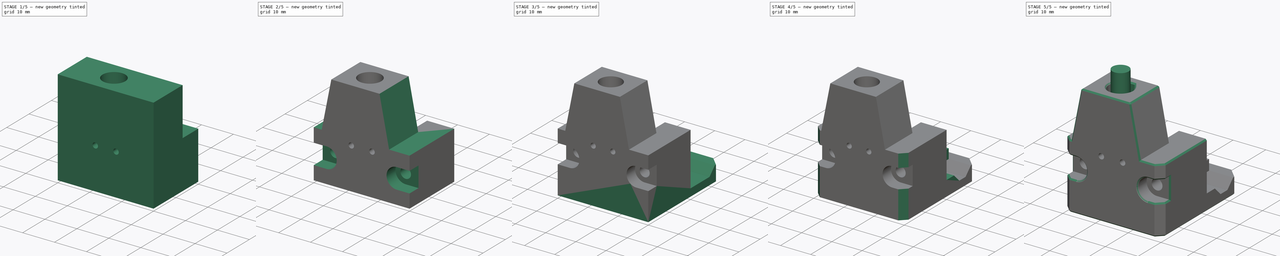
[diagram: build sequence overview — one tinted view per stage of 5, left to right]
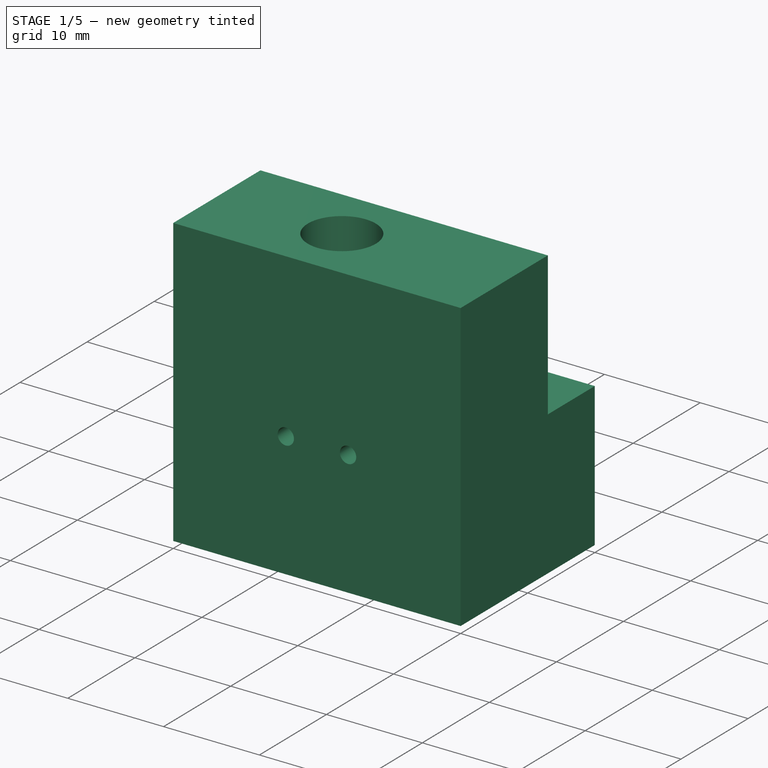
[diagram: stage 1 of 5 — iso view after this stage's code; geometry added in this stage tinted green]
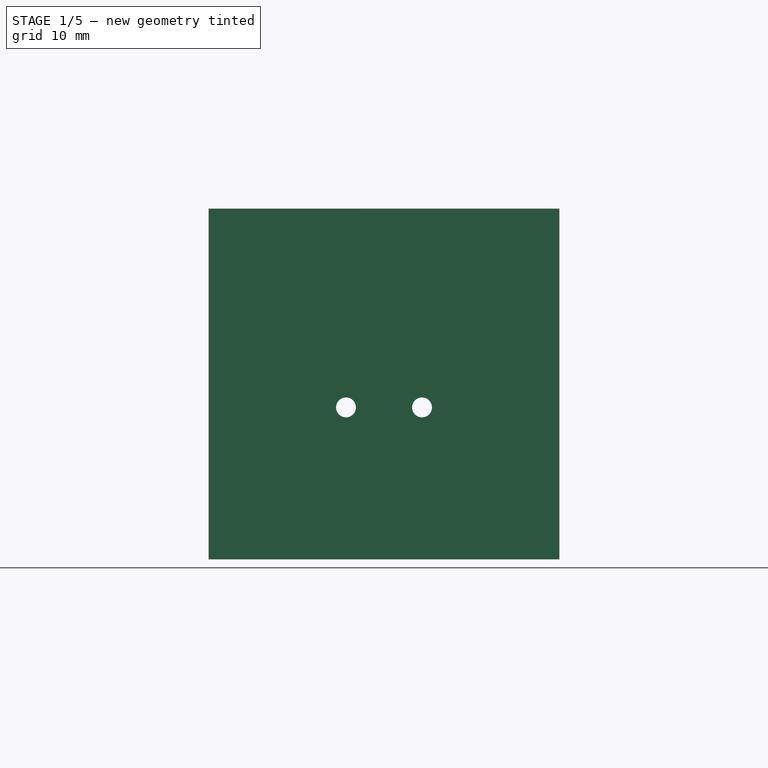
[diagram: stage 1 of 5 — front view after this stage's code; geometry added in this stage tinted green]
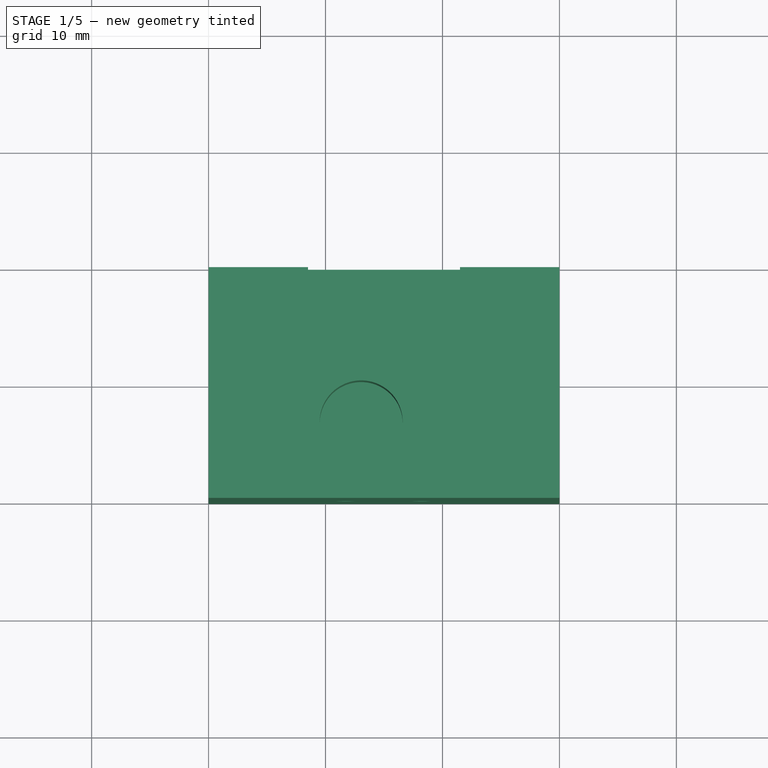
[diagram: stage 1 of 5 — top view after this stage's code; geometry added in this stage tinted green]
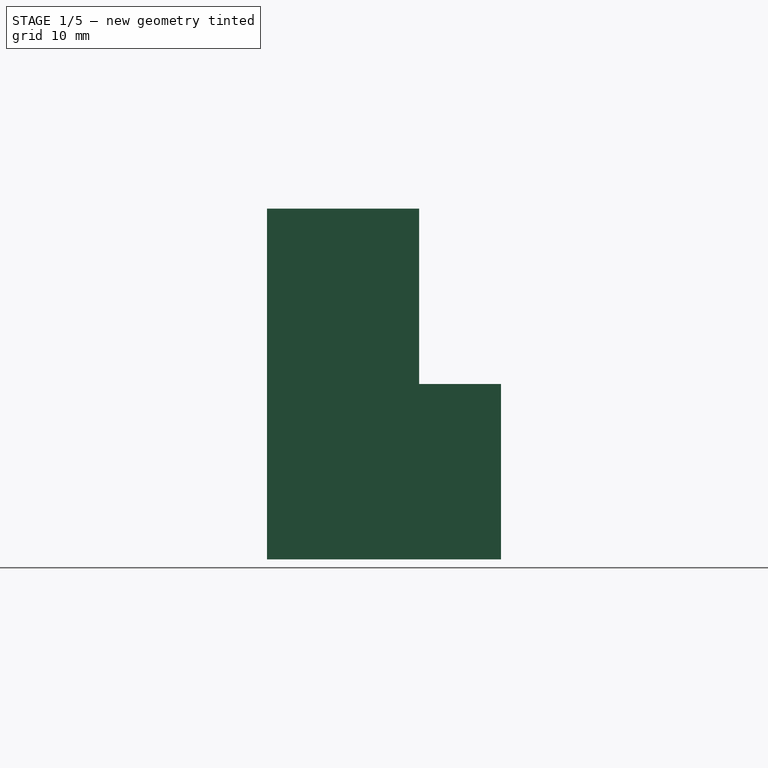
[diagram: stage 1 of 5 — right view after this stage's code; geometry added in this stage tinted green]
FCSTD DOCUMENT  (FreeCAD 0.19R24366 (Git))
Label: z-endstop
License: All rights reserved
LicenseURL: http://en.wikipedia.org/wiki/All_rights_reserved
objects: Sketcher::SketchObject×16, PartDesign::Pocket×11, PartDesign::Chamfer×6, PartDesign::Pad×5, Part::Cylinder×1, PartDesign::Body×1
note: 62 computed .brp shape members not serialized (recipe doc carries the construction recipe); baked Part::Feature solids carry a one-line shape summary decoded from their .brp

FEATURE [Sketcher::SketchObject] Sketch
  FullyConstrained = true
  MapMode = 5
  Support = -> [XY_Plane]
  sketch-geometry (4):
    g0: LineSegment StartX=0 StartY=0 StartZ=0 EndX=30 EndY=0 EndZ=0
    g1: LineSegment StartX=30 StartY=0 StartZ=0 EndX=30 EndY=-20 EndZ=0
    g2: LineSegment StartX=30 StartY=-20 StartZ=0 EndX=0 EndY=-20 EndZ=0
    g3: LineSegment StartX=0 StartY=-20 StartZ=0 EndX=0 EndY=0 EndZ=0
  constraints (11):
    c: Coincident(g0,g1)
    c: Coincident(g1,g2)
    c: Coincident(g2,g3)
    c: Coincident(g3,g0)
    c: Horizontal(g0)
    c: Horizontal(g2)
    c: Vertical(g1)
    c: Vertical(g3)
    c: Coincident(g0,g-1)
    c: DistanceX(g2,g2) = 30
    c: DistanceY(g3,g3) = 20
FEATURE [PartDesign::Pad] Pad
  Direction = (1,1,1)
  Length = 15
  Length2 = 100
  Profile = -> Sketch
  Type = 0
FEATURE [Sketcher::SketchObject] Sketch001
  ExternalGeometry = -> [Pad]
  FullyConstrained = true
  MapMode = 5
  Placement = pos=(0,0,15) rot=(0,0,1;0rad)
  Support = -> [Pad]
  sketch-geometry (4):
    g0: LineSegment StartX=0 StartY=-20 StartZ=0 EndX=30 EndY=-20 EndZ=0
    g1: LineSegment StartX=30 StartY=-20 StartZ=0 EndX=30 EndY=-7 EndZ=0
    g2: LineSegment StartX=30 StartY=-7 StartZ=0 EndX=0 EndY=-7 EndZ=0
    g3: LineSegment StartX=0 StartY=-7 StartZ=0 EndX=0 EndY=-20 EndZ=0
  constraints (11):
    c: Coincident(g0,g1)
    c: Coincident(g1,g2)
    c: Coincident(g2,g3)
    c: Coincident(g3,g0)
    c: Horizontal(g0)
    c: Horizontal(g2)
    c: Vertical(g1)
    c: Vertical(g3)
    c: Coincident(g0,g-3)
    c: PointOnObject(g1,g-4)
    c: DistanceY(g1,g-4) = 7
FEATURE [PartDesign::Pad] Pad001
  BaseFeature = -> Pad
  Direction = (1,1,1)
  Length = 15
  Length2 = 100
  Profile = -> Sketch001
  Refine = true
  Type = 0
FEATURE [Sketcher::SketchObject] Sketch002
  ExternalGeometry = -> [Pad001]
  FullyConstrained = true
  MapMode = 5
  Placement = pos=(0,0,0) rot=(0,0.707107,0.707107;3.14159rad)
  Support = -> [Pad001]
  sketch-geometry (4):
    g0: LineSegment StartX=-21.5 StartY=19 StartZ=0 EndX=-8.5 EndY=19 EndZ=0
    g1: LineSegment StartX=-8.5 StartY=19 StartZ=0 EndX=-8.5 EndY=2 EndZ=0
    g2: LineSegment StartX=-8.5 StartY=2 StartZ=0 EndX=-21.5 EndY=2 EndZ=0
    g3: LineSegment StartX=-21.5 StartY=2 StartZ=0 EndX=-21.5 EndY=19 EndZ=0
  constraints (12):
    c: Coincident(g0,g1)
    c: Coincident(g1,g2)
    c: Coincident(g2,g3)
    c: Coincident(g3,g0)
    c: Horizontal(g0)
    c: Horizontal(g2)
    c: Vertical(g1)
    c: Vertical(g3)
    c: DistanceY(g-1,g1) = 2
    c: DistanceX(g-3,g0) = 8.5
    c: DistanceX(g0,g-3) = 8.5
    c: DistanceY(g-3,g0) = 4
FEATURE [PartDesign::Pocket] Pocket
  BaseFeature = -> Pad001
  Length = 16.5
  Length2 = 100
  Profile = -> Sketch002
  Type = 0
FEATURE [Sketcher::SketchObject] Sketch003
  ExternalGeometry = -> [Pocket]
  FullyConstrained = true
  MapMode = 5
  Placement = pos=(0,-16.5,3.7e-15) rot=(0,0.707107,0.707107;3.14159rad)
  Support = -> [Pocket]
  sketch-geometry (2):
    g0: Circle CenterX=-18.25 CenterY=13 CenterZ=0 NormalX=0 NormalY=0 NormalZ=1 AngleXU=0 Radius=0.85
    g1: Circle CenterX=-11.75 CenterY=13 CenterZ=0 NormalX=0 NormalY=0 NormalZ=1 AngleXU=0 Radius=0.85
  constraints (6):
    c: DistanceX(g0,g1) = 6.5
    c: DistanceX(g-4,g0) = 3.25
    c: Horizontal(g0,g1)
    c: Equal(g0,g1)
    c: Radius(g1) = 0.85
    c: DistanceY(g0,g-5) = 6
FEATURE [PartDesign::Pocket] Pocket001
  BaseFeature = -> Pocket
  Length = 4
  Length2 = 100
  Profile = -> Sketch003
  Type = 0
FEATURE [Sketcher::SketchObject] Sketch004
  ExternalGeometry = -> [Pocket001]
  FullyConstrained = true
  MapMode = 5
  Placement = pos=(0,0,30) rot=(0,0,1;0rad)
  Support = -> [Pocket001]
  sketch-geometry (2):
    g0: Circle CenterX=13.05 CenterY=-13.5 CenterZ=0 NormalX=0 NormalY=0 NormalZ=1 AngleXU=0 Radius=3.55
    g1: GeomPoint X=18.25 Y=-16.5 Z=0
  constraints (5):
    c: DistanceY(g-3,g0) = 3
    c: PointOnObject(g1,g-3)
    c: DistanceX(g1,g-3) = 3.25
    c: DistanceX(g0,g1) = 5.2
    c: Radius(g0) = 3.55
FEATURE [PartDesign::Pocket] Pocket002
  BaseFeature = -> Pocket001
  Length = 8.5
  Length2 = 100
  Profile = -> Sketch004
  Type = 0
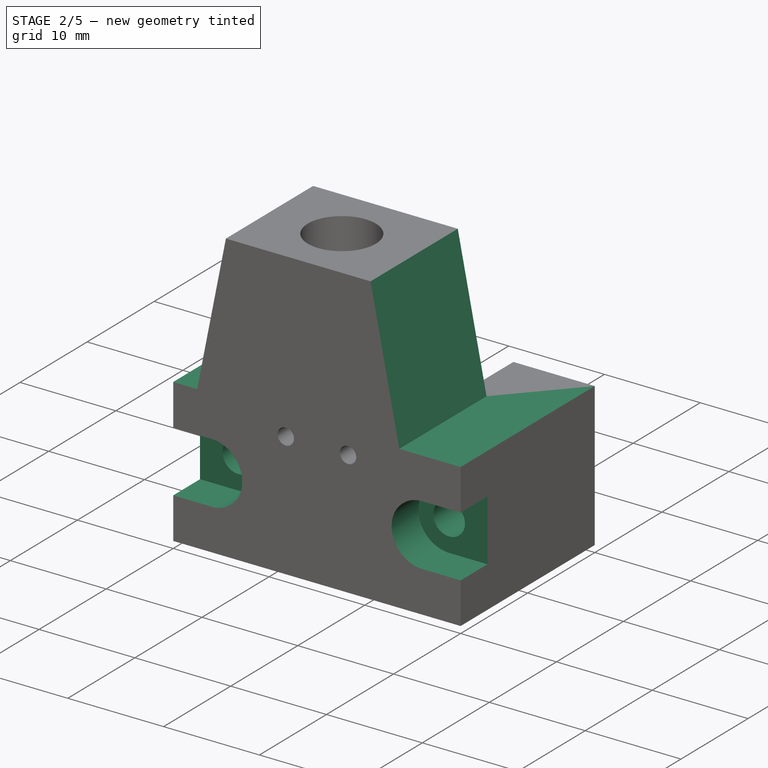
[diagram: stage 2 of 5 — iso view after this stage's code; geometry added in this stage tinted green]
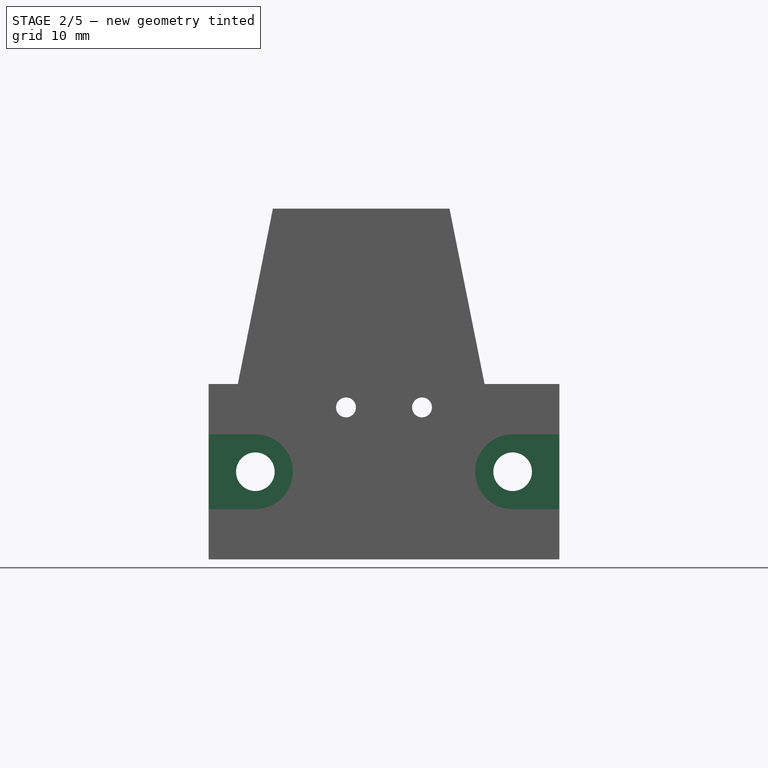
[diagram: stage 2 of 5 — front view after this stage's code; geometry added in this stage tinted green]
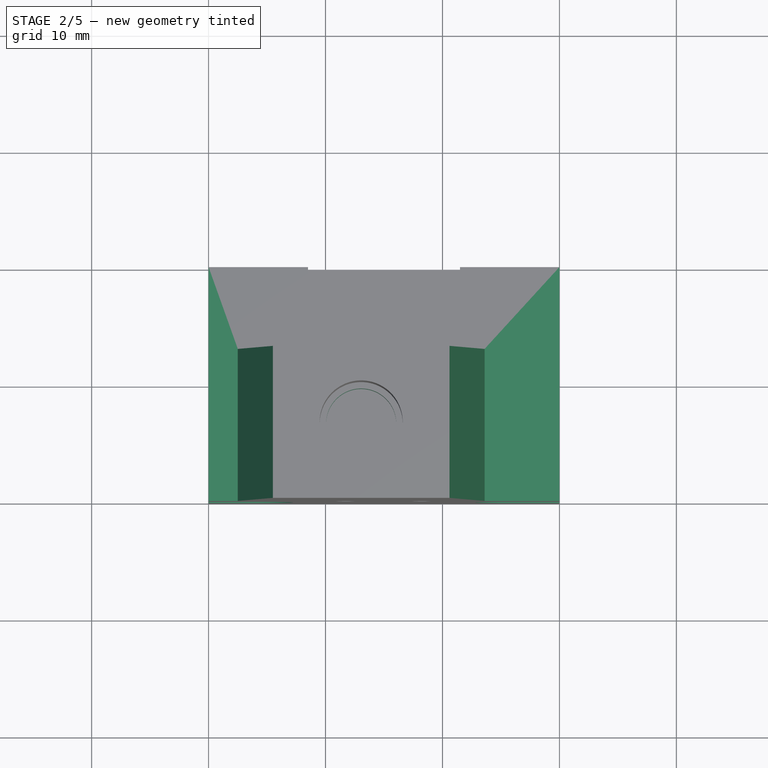
[diagram: stage 2 of 5 — top view after this stage's code; geometry added in this stage tinted green]
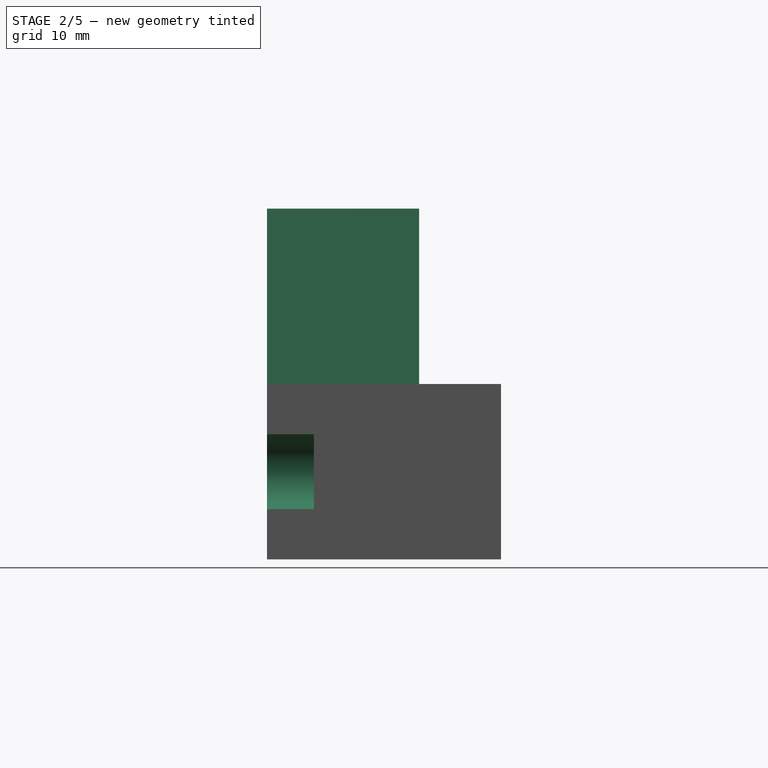
[diagram: stage 2 of 5 — right view after this stage's code; geometry added in this stage tinted green]
FEATURE [Sketcher::SketchObject] Sketch005
  ExternalGeometry = -> [Pocket002]
  FullyConstrained = true
  MapMode = 5
  Placement = pos=(0,0,21.5) rot=(0,0,1;0rad)
  Support = -> [Pocket002]
  sketch-geometry (1):
    g0: Circle CenterX=13.05 CenterY=-13.5 CenterZ=0 NormalX=0 NormalY=0 NormalZ=1 AngleXU=0 Radius=3
  constraints (2):
    c: Coincident(g0,g-3)
    c: Radius(g0) = 3
FEATURE [PartDesign::Pocket] Pocket003
  BaseFeature = -> Pocket002
  Length = 0
  Length2 = 100
  Profile = -> Sketch005
  Type = 3
  UpToFace = -> Pocket002 [Face13]
FEATURE [Sketcher::SketchObject] Sketch006
  ExternalGeometry = -> [Pocket003]
  FullyConstrained = true
  MapMode = 5
  Placement = pos=(0,0,0) rot=(0,0.707107,0.707107;3.14159rad)
  Support = -> [Pocket003]
  sketch-geometry (2):
    g0: Circle CenterX=-26 CenterY=7.5 CenterZ=0 NormalX=0 NormalY=0 NormalZ=1 AngleXU=0 Radius=1.65
    g1: Circle CenterX=-4 CenterY=7.5 CenterZ=0 NormalX=0 NormalY=0 NormalZ=1 AngleXU=0 Radius=1.65
  constraints (6):
    c: Horizontal(g1,g0)
    c: Equal(g0,g1)
    c: DistanceY(g-3,g0) = 7.5
    c: DistanceX(g-3,g0) = 4
    c: DistanceX(g1,g-1) = 4
    c: Radius(g1) = 1.65
FEATURE [PartDesign::Pocket] Pocket004
  BaseFeature = -> Pocket003
  Length = 5
  Length2 = 100
  Profile = -> Sketch006
  Type = 1
FEATURE [Sketcher::SketchObject] Sketch007
  ExternalGeometry = -> [Pocket004]
  FullyConstrained = true
  MapMode = 5
  Placement = pos=(0,-20,0) rot=(1,0,0;1.5708rad)
  Support = -> [Pocket004]
  sketch-geometry (8):
    g0: ArcOfCircle CenterX=4 CenterY=7.5 CenterZ=0 NormalX=0 NormalY=0 NormalZ=1 AngleXU=0 Radius=3.2 StartAngle=4.71239 EndAngle=7.85398
    g1: ArcOfCircle CenterX=26 CenterY=7.5 CenterZ=0 NormalX=0 NormalY=0 NormalZ=1 AngleXU=0 Radius=3.2 StartAngle=1.5708 EndAngle=4.71239
    g2: LineSegment StartX=0 StartY=10.7 StartZ=0 EndX=4 EndY=10.7 EndZ=0
    g3: LineSegment StartX=0 StartY=4.3 StartZ=0 EndX=4 EndY=4.3 EndZ=0
    g4: LineSegment StartX=0 StartY=4.3 StartZ=0 EndX=0 EndY=10.7 EndZ=0
    g5: LineSegment StartX=30 StartY=10.7 StartZ=0 EndX=26 EndY=10.7 EndZ=0
    g6: LineSegment StartX=30 StartY=4.3 StartZ=0 EndX=26 EndY=4.3 EndZ=0
    g7: LineSegment StartX=30 StartY=4.3 StartZ=0 EndX=30 EndY=10.7 EndZ=0
  constraints (24):
    c: Coincident(g0,g-5)
    c: Coincident(g1,g-4)
    c: Vertical(g0,g0)
    c: Vertical(g0,g0)
    c: Vertical(g1,g1)
    c: Vertical(g1,g1)
    c: Equal(g0,g1)
    c: Radius(g0) = 3.2
    c: PointOnObject(g2,g-2)
    c: Coincident(g2,g0)
    c: PointOnObject(g3,g-2)
    c: Coincident(g3,g0)
    c: Coincident(g4,g3)
    c: Coincident(g4,g2)
    c: PointOnObject(g5,g-3)
    c: Coincident(g5,g1)
    c: PointOnObject(g6,g-3)
    c: Coincident(g6,g1)
    c: Coincident(g7,g6)
    c: Coincident(g7,g5)
    c: Horizontal(g5)
    c: Horizontal(g6)
    c: Horizontal(g2)
    c: Horizontal(g3)
FEATURE [PartDesign::Pocket] Pocket005
  BaseFeature = -> Pocket004
  Length = 4
  Length2 = 100
  Profile = -> Sketch007
  Type = 0
FEATURE [Sketcher::SketchObject] Sketch008
  ExternalGeometry = -> [Pocket005]
  FullyConstrained = true
  MapMode = 5
  Placement = pos=(0,-20,0) rot=(1,0,0;1.5708rad)
  Support = -> [Pocket005]
  sketch-geometry (8):
    g0: LineSegment StartX=5.5 StartY=30 StartZ=0 EndX=2.5 EndY=15 EndZ=0
    g1: LineSegment StartX=2.5 StartY=15 StartZ=0 EndX=0 EndY=15 EndZ=0
    g2: LineSegment StartX=0 StartY=15 StartZ=0 EndX=0 EndY=30 EndZ=0
    g3: LineSegment StartX=0 StartY=30 StartZ=0 EndX=5.5 EndY=30 EndZ=0
    g4: LineSegment StartX=20.6 StartY=30 StartZ=0 EndX=23.6 EndY=15 EndZ=0
    g5: LineSegment StartX=23.6 StartY=15 StartZ=0 EndX=30 EndY=15 EndZ=0
    g6: LineSegment StartX=30 StartY=15 StartZ=0 EndX=30 EndY=30 EndZ=0
    g7: LineSegment StartX=30 StartY=30 StartZ=0 EndX=20.6 EndY=30 EndZ=0
  constraints (22):
    c: PointOnObject(g0,g-6)
    c: Coincident(g0,g1)
    c: PointOnObject(g1,g-2)
    c: Horizontal(g1)
    c: Coincident(g1,g2)
    c: Coincident(g2,g-6)
    c: Coincident(g2,g3)
    c: Coincident(g3,g0)
    c: PointOnObject(g4,g-6)
    c: Coincident(g4,g5)
    c: PointOnObject(g5,g-5)
    c: Coincident(g5,g6)
    c: Coincident(g6,g-6)
    c: Coincident(g6,g7)
    c: Coincident(g7,g4)
    c: Horizontal(g5)
    c: DistanceX(g0,g-3) = 4
    c: DistanceX(g-3,g4) = 4
    c: DistanceX(g0,g0) = 3
    c: DistanceX(g4,g4) = 3
    c: Horizontal(g0,g4)
    c: DistanceY(g-1,g1) = 15
FEATURE [PartDesign::Pocket] Pocket006
  BaseFeature = -> Pocket005
  Length = 5
  Length2 = 100
  Profile = -> Sketch008
  Refine = true
  Type = 1
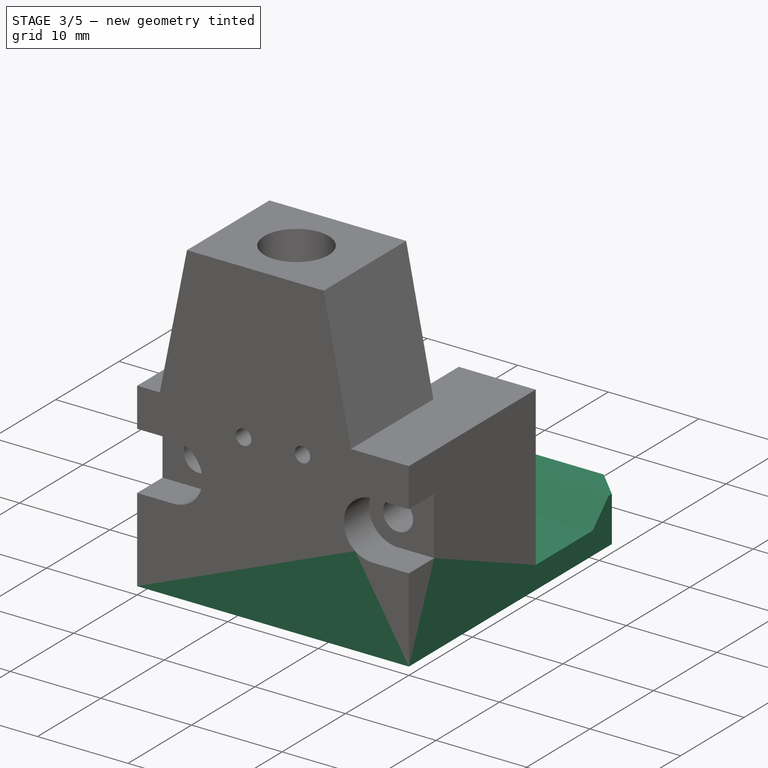
[diagram: stage 3 of 5 — iso view after this stage's code; geometry added in this stage tinted green]
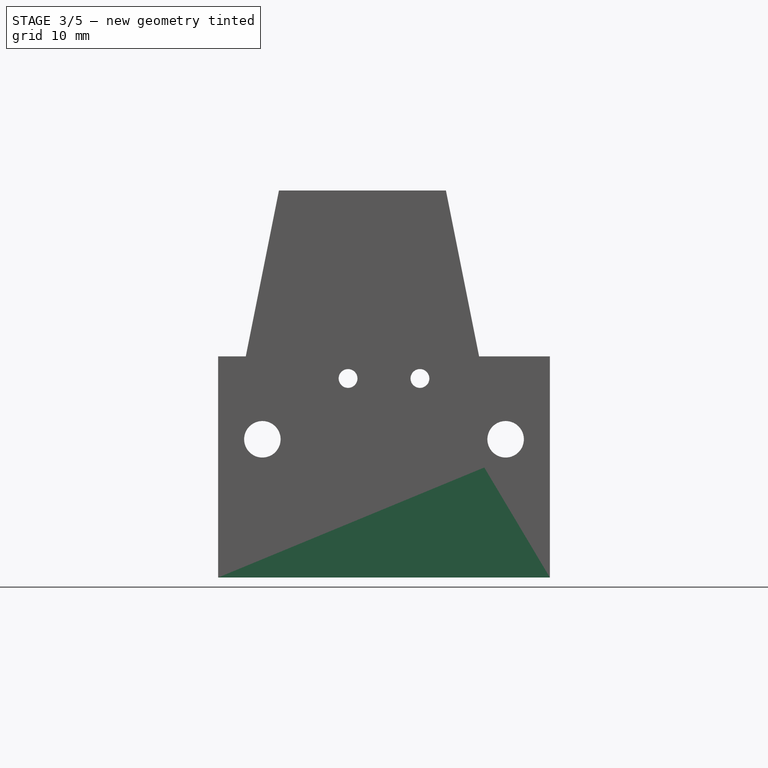
[diagram: stage 3 of 5 — front view after this stage's code; geometry added in this stage tinted green]
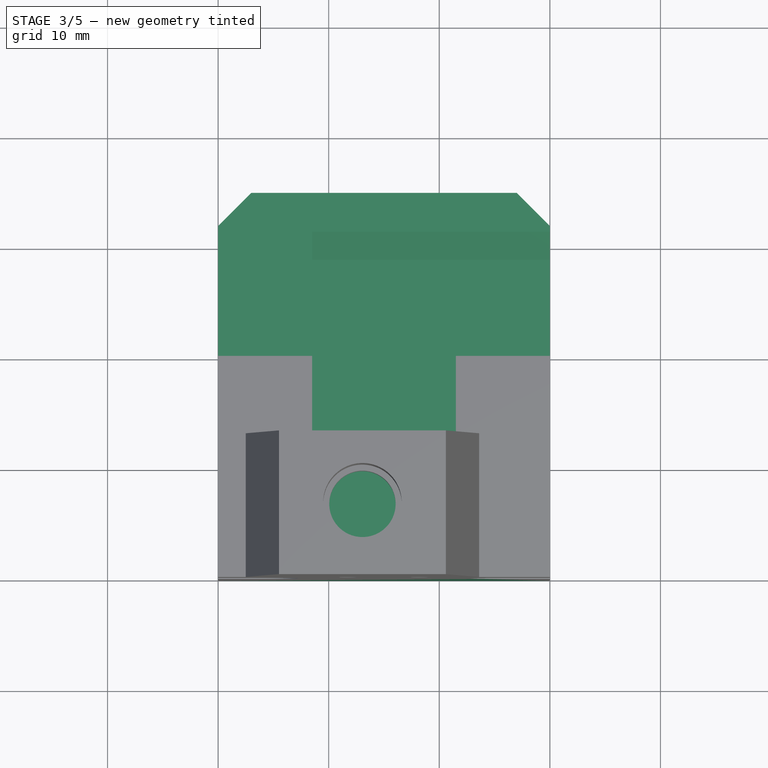
[diagram: stage 3 of 5 — top view after this stage's code; geometry added in this stage tinted green]
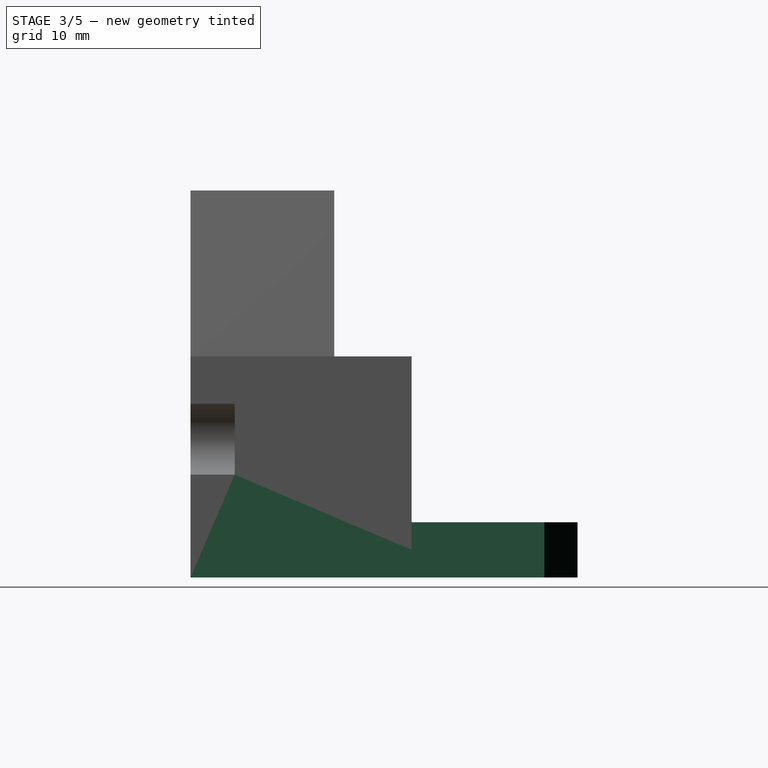
[diagram: stage 3 of 5 — right view after this stage's code; geometry added in this stage tinted green]
FEATURE [Sketcher::SketchObject] Sketch009
  ExternalGeometry = -> [Pocket006]
  FullyConstrained = true
  MapMode = 5
  Placement = pos=(0,-20,0) rot=(1,0,0;1.5708rad)
  Support = -> [Pocket006]
  sketch-geometry (4):
    g0: LineSegment StartX=0 StartY=0 StartZ=0 EndX=30 EndY=0 EndZ=0
    g1: LineSegment StartX=30 StartY=0 StartZ=0 EndX=30 EndY=-5 EndZ=0
    g2: LineSegment StartX=30 StartY=-5 StartZ=0 EndX=0 EndY=-5 EndZ=0
    g3: LineSegment StartX=0 StartY=-5 StartZ=0 EndX=0 EndY=0 EndZ=0
  constraints (11):
    c: Coincident(g0,g1)
    c: Coincident(g1,g2)
    c: Coincident(g2,g3)
    c: Coincident(g3,g0)
    c: Horizontal(g0)
    c: Horizontal(g2)
    c: Vertical(g1)
    c: Vertical(g3)
    c: Coincident(g0,g-1)
    c: Vertical(g0,g-3)
    c: DistanceY(g1,g1) = 5
FEATURE [PartDesign::Pad] Pad002
  BaseFeature = -> Pocket006
  Direction = (1,1,1)
  Length = 35
  Length2 = 100
  Profile = -> Sketch009
  Reversed = true
  Type = 0
FEATURE [Sketcher::SketchObject] Sketch010
  ExternalGeometry = -> [Pad002]
  FullyConstrained = true
  MapMode = 5
  Placement = pos=(0,-16.5,3.7e-15) rot=(0,0.707107,0.707107;3.14159rad)
  Support = -> [Pad002]
  sketch-geometry (4):
    g0: LineSegment StartX=-21.5 StartY=2 StartZ=0 EndX=-8.5 EndY=2 EndZ=0
    g1: LineSegment StartX=-8.5 StartY=2 StartZ=0 EndX=-8.5 EndY=-2.5 EndZ=0
    g2: LineSegment StartX=-8.5 StartY=-2.5 StartZ=0 EndX=-21.5 EndY=-2.5 EndZ=0
    g3: LineSegment StartX=-21.5 StartY=-2.5 StartZ=0 EndX=-21.5 EndY=2 EndZ=0
  constraints (11):
    c: Coincident(g0,g1)
    c: Coincident(g1,g2)
    c: Coincident(g2,g3)
    c: Coincident(g3,g0)
    c: Horizontal(g0)
    c: Horizontal(g2)
    c: Vertical(g1)
    c: Vertical(g3)
    c: Coincident(g0,g-3)
    c: Vertical(g1,g-3)
    c: DistanceY(g2,g-1) = 2.5
FEATURE [PartDesign::Pocket] Pocket007
  BaseFeature = -> Pad002
  Length = 25.5
  Length2 = 100
  Profile = -> Sketch010
  Reversed = true
  Type = 0
FEATURE [Sketcher::SketchObject] Sketch011
  ExternalGeometry = -> [Pocket007]
  FullyConstrained = true
  MapMode = 5
  Placement = pos=(21.5,0,0) rot=(0.57735,-0.57735,-0.57735;2.0944rad)
  Support = -> [Pocket007]
  sketch-geometry (4):
    g0: LineSegment StartX=-9 StartY=-2.5 StartZ=0 EndX=0 EndY=-2.5 EndZ=0
    g1: LineSegment StartX=0 StartY=-2.5 StartZ=0 EndX=0 EndY=0 EndZ=0
    g2: LineSegment StartX=0 StartY=0 StartZ=0 EndX=-9 EndY=0 EndZ=0
    g3: LineSegment StartX=-9 StartY=0 StartZ=0 EndX=-9 EndY=-2.5 EndZ=0
  constraints (10):
    c: Coincident(g0,g1)
    c: Coincident(g1,g2)
    c: Coincident(g2,g3)
    c: Coincident(g3,g0)
    c: Horizontal(g0)
    c: Horizontal(g2)
    c: Vertical(g1)
    c: Vertical(g3)
    c: Coincident(g0,g-3)
    c: Coincident(g1,g-1)
FEATURE [PartDesign::Pocket] Pocket008
  BaseFeature = -> Pocket007
  Length = 5
  Length2 = 100
  Profile = -> Sketch011
  Refine = true
  Type = 1
FEATURE [PartDesign::Chamfer] Chamfer
  Angle = 45
  Base = -> Pocket008 [Edge15]
  BaseFeature = -> Pocket008
  ChamferType = 0
  FlipDirection = false
  Size = 2.49
  Size2 = 1
  SupportTransform = false
FEATURE [PartDesign::Chamfer] Chamfer001
  Angle = 45
  Base = -> Chamfer [Edge9,Edge23]
  BaseFeature = -> Chamfer
  ChamferType = 0
  FlipDirection = false
  Size = 3
  Size2 = 1
  SupportTransform = false
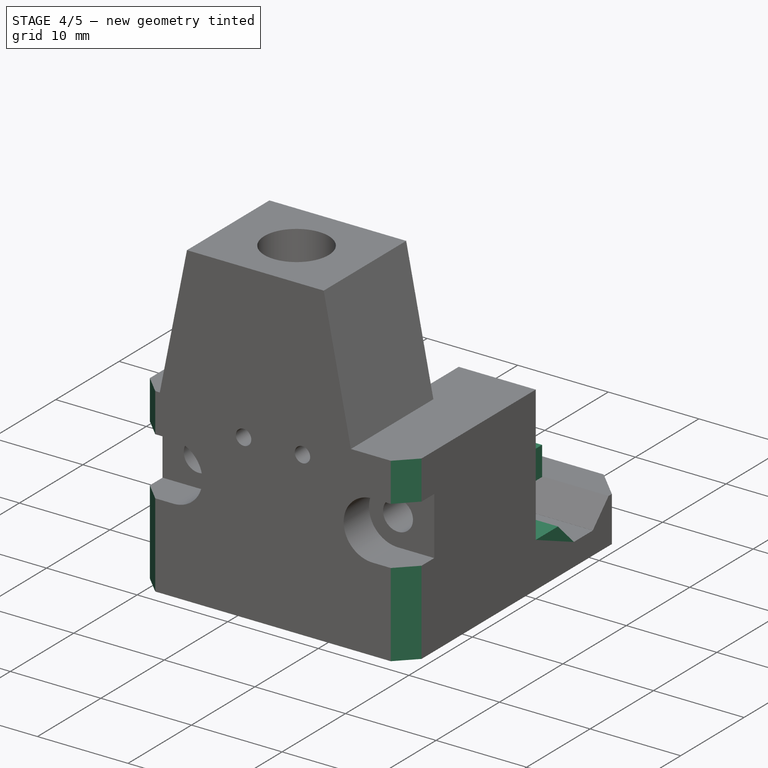
[diagram: stage 4 of 5 — iso view after this stage's code; geometry added in this stage tinted green]
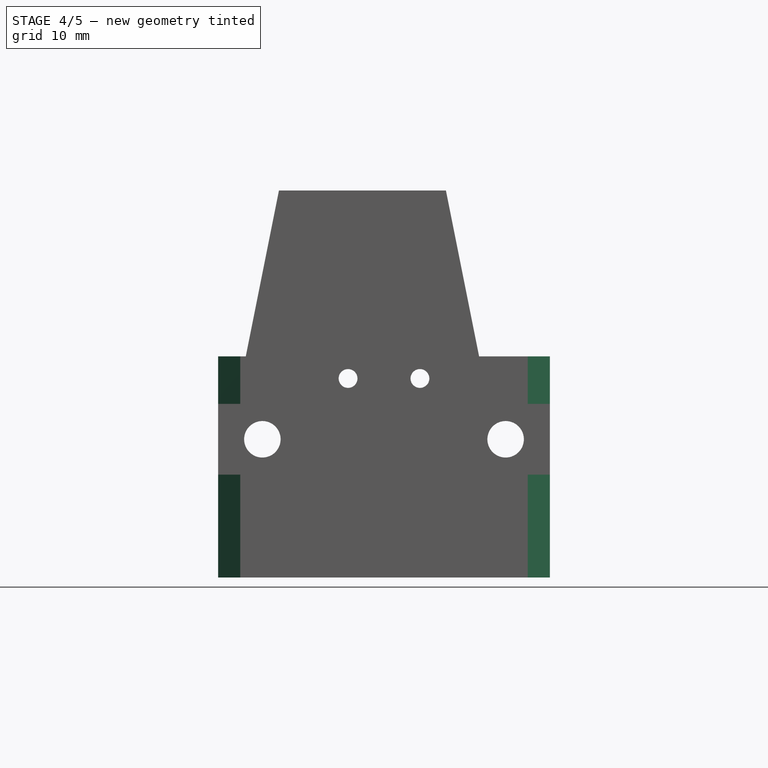
[diagram: stage 4 of 5 — front view after this stage's code; geometry added in this stage tinted green]
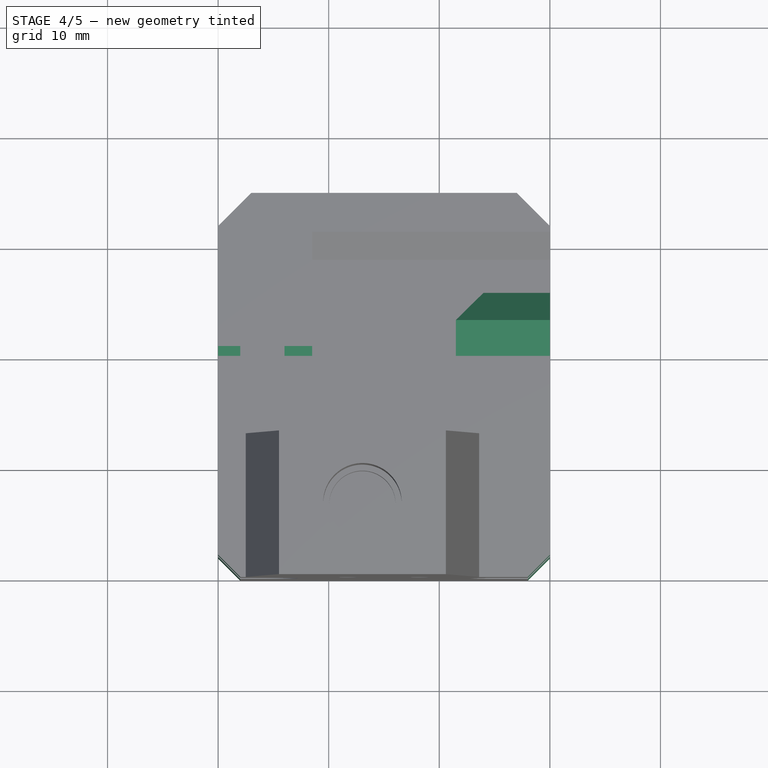
[diagram: stage 4 of 5 — top view after this stage's code; geometry added in this stage tinted green]
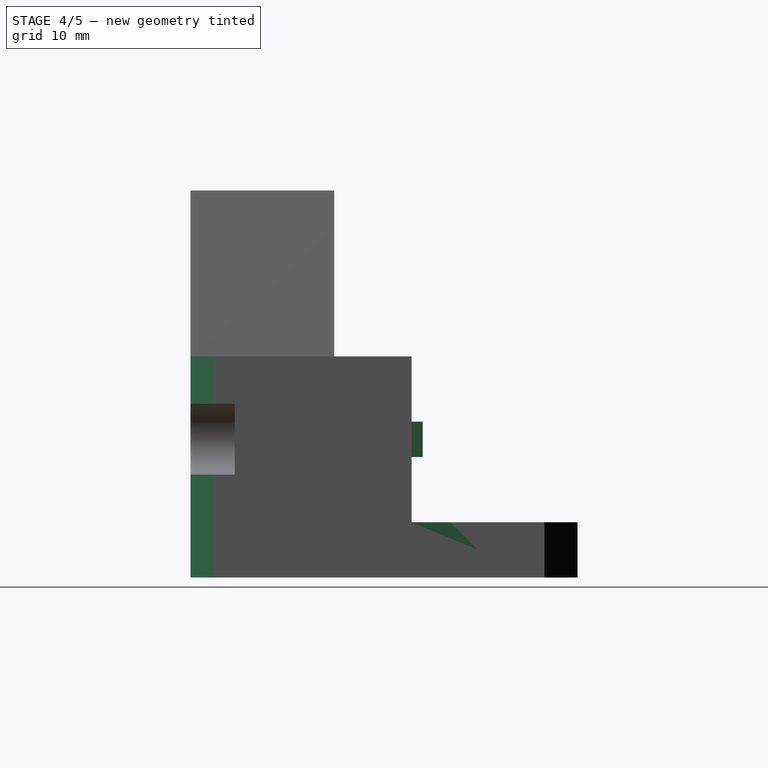
[diagram: stage 4 of 5 — right view after this stage's code; geometry added in this stage tinted green]
FEATURE [Sketcher::SketchObject] Sketch012
  ExternalGeometry = -> [Chamfer001]
  FullyConstrained = true
  MapMode = 5
  Placement = pos=(0,3e-15,0) rot=(0,0.707107,0.707107;3.14159rad)
  Support = -> [Chamfer001]
  sketch-geometry (4):
    g0: LineSegment StartX=-30 StartY=-2.5 StartZ=0 EndX=-21.5 EndY=-2.5 EndZ=0
    g1: LineSegment StartX=-21.5 StartY=-2.5 StartZ=0 EndX=-21.5 EndY=0 EndZ=0
    g2: LineSegment StartX=-21.5 StartY=0 StartZ=0 EndX=-30 EndY=0 EndZ=0
    g3: LineSegment StartX=-30 StartY=0 StartZ=0 EndX=-30 EndY=-2.5 EndZ=0
  constraints (11):
    c: Coincident(g0,g1)
    c: Coincident(g1,g2)
    c: Coincident(g2,g3)
    c: Coincident(g3,g0)
    c: Horizontal(g0)
    c: Horizontal(g2)
    c: Vertical(g1)
    c: Vertical(g3)
    c: Coincident(g0,g-3)
    c: PointOnObject(g1,g-1)
    c: Vertical(g1,g-3)
FEATURE [PartDesign::Pad] Pad003
  BaseFeature = -> Chamfer001
  Direction = (1,1,1)
  Length = 6
  Length2 = 100
  Profile = -> Sketch012
  Type = 0
FEATURE [PartDesign::Chamfer] Chamfer002
  Angle = 45
  Base = -> Pad003 [Edge111,Edge110]
  BaseFeature = -> Pad003
  ChamferType = 0
  FlipDirection = false
  Refine = true
  Size = 2.49
  Size2 = 1
  SupportTransform = false
FEATURE [Sketcher::SketchObject] Sketch013
  ExternalGeometry = -> [Chamfer002]
  FullyConstrained = true
  MapMode = 5
  Placement = pos=(0,0,0) rot=(0,0.707107,0.707107;3.14159rad)
  Support = -> [Chamfer002]
  sketch-geometry (16):
    g0: LineSegment StartX=-30 StartY=9.1 StartZ=0 EndX=-28 EndY=9.1 EndZ=0
    g1: LineSegment StartX=-28 StartY=9.1 StartZ=0 EndX=-28 EndY=5.9 EndZ=0
    g2: LineSegment StartX=-28 StartY=5.9 StartZ=0 EndX=-30 EndY=5.9 EndZ=0
    g3: LineSegment StartX=-30 StartY=5.9 StartZ=0 EndX=-30 EndY=9.1 EndZ=0
    g4: LineSegment StartX=0 StartY=9.1 StartZ=0 EndX=-2 EndY=9.1 EndZ=0
    g5: LineSegment StartX=-2 StartY=9.1 StartZ=0 EndX=-2 EndY=5.9 EndZ=0
    g6: LineSegment StartX=-2 StartY=5.9 StartZ=0 EndX=0 EndY=5.9 EndZ=0
    g7: LineSegment StartX=0 StartY=5.9 StartZ=0 EndX=0 EndY=9.1 EndZ=0
    g8: LineSegment StartX=-21.5 StartY=9.1 StartZ=0 EndX=-24 EndY=9.1 EndZ=0
    g9: LineSegment StartX=-24 StartY=9.1 StartZ=0 EndX=-24 EndY=5.9 EndZ=0
    g10: LineSegment StartX=-24 StartY=5.9 StartZ=0 EndX=-21.5 EndY=5.9 EndZ=0
    g11: LineSegment StartX=-21.5 StartY=5.9 StartZ=0 EndX=-21.5 EndY=9.1 EndZ=0
    g12: LineSegment StartX=-8.5 StartY=9.1 StartZ=0 EndX=-6 EndY=9.1 EndZ=0
    g13: LineSegment StartX=-6 StartY=9.1 StartZ=0 EndX=-6 EndY=5.9 EndZ=0
    g14: LineSegment StartX=-6 StartY=5.9 StartZ=0 EndX=-8.5 EndY=5.9 EndZ=0
    g15: LineSegment StartX=-8.5 StartY=5.9 StartZ=0 EndX=-8.5 EndY=9.1 EndZ=0
  constraints (48):
    c: Coincident(g0,g1)
    c: Coincident(g1,g2)
    c: Coincident(g2,g3)
    c: Coincident(g3,g0)
    c: Horizontal(g0)
    c: Horizontal(g2)
    c: Vertical(g1)
    c: Vertical(g3)
    c: PointOnObject(g0,g-5)
    c: Coincident(g4,g5)
    c: Coincident(g5,g6)
    c: Coincident(g6,g7)
    c: Coincident(g7,g4)
    c: Horizontal(g4)
    c: Horizontal(g6)
    c: Vertical(g5)
    c: Vertical(g7)
    c: PointOnObject(g4,g-2)
    c: Coincident(g8,g9)
    c: Coincident(g9,g10)
    c: Coincident(g10,g11)
    c: Coincident(g11,g8)
    c: Horizontal(g8)
    c: Horizontal(g10)
    c: Vertical(g9)
    c: Vertical(g11)
    c: PointOnObject(g8,g-6)
    c: Coincident(g12,g13)
    c: Coincident(g13,g14)
    c: Coincident(g14,g15)
    c: Coincident(g15,g12)
    c: Horizontal(g12)
    c: Horizontal(g14)
    c: Vertical(g13)
    c: Vertical(g15)
    c: PointOnObject(g12,g-7)
    c: Horizontal(g0,g8)
    c: Horizontal(g8,g12)
    c: Horizontal(g12,g4)
    c: Horizontal(g1,g9)
    c: Horizontal(g9,g13)
    c: Horizontal(g13,g5)
    c: DistanceY(g3,g3) = 3.2
    c: DistanceY(g-3,g0) = 1.6
    c: DistanceX(g0,g-3) = 2
    c: DistanceX(g-3,g8) = 2
    c: DistanceX(g12,g-4) = 2
    c: DistanceX(g-4,g4) = 2
FEATURE [PartDesign::Pad] Pad004
  BaseFeature = -> Chamfer002
  Direction = (1,1,1)
  Length = 1
  Length2 = 100
  Profile = -> Sketch013
  Type = 0
FEATURE [PartDesign::Chamfer] Chamfer003
  Angle = 45
  Base = -> Pad004 [Edge77,Edge86,Edge25,Edge29]
  BaseFeature = -> Pad004
  ChamferType = 0
  FlipDirection = false
  Size = 2
  Size2 = 1
  SupportTransform = false
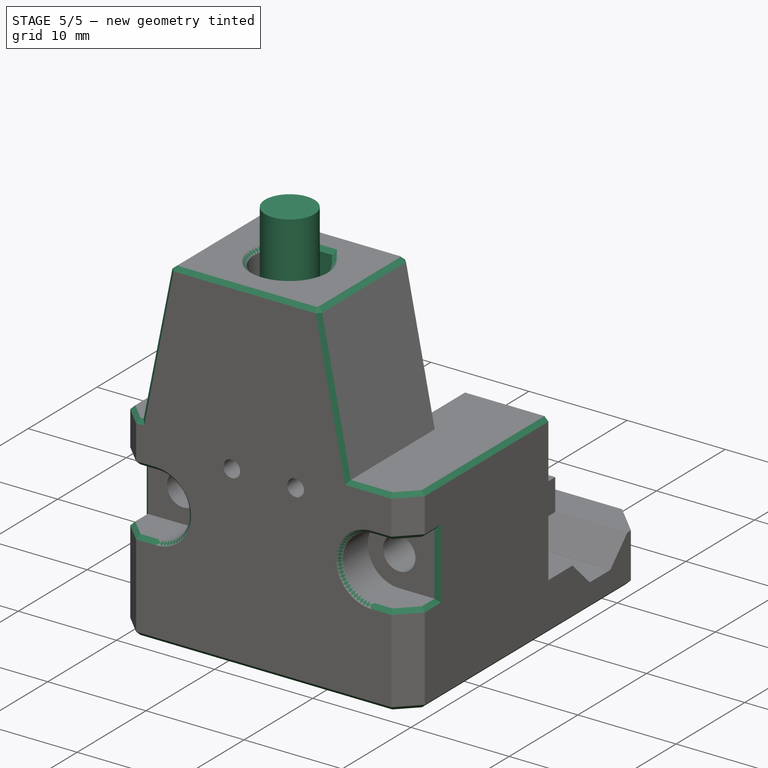
[diagram: stage 5 of 5 — iso view after this stage's code; geometry added in this stage tinted green]
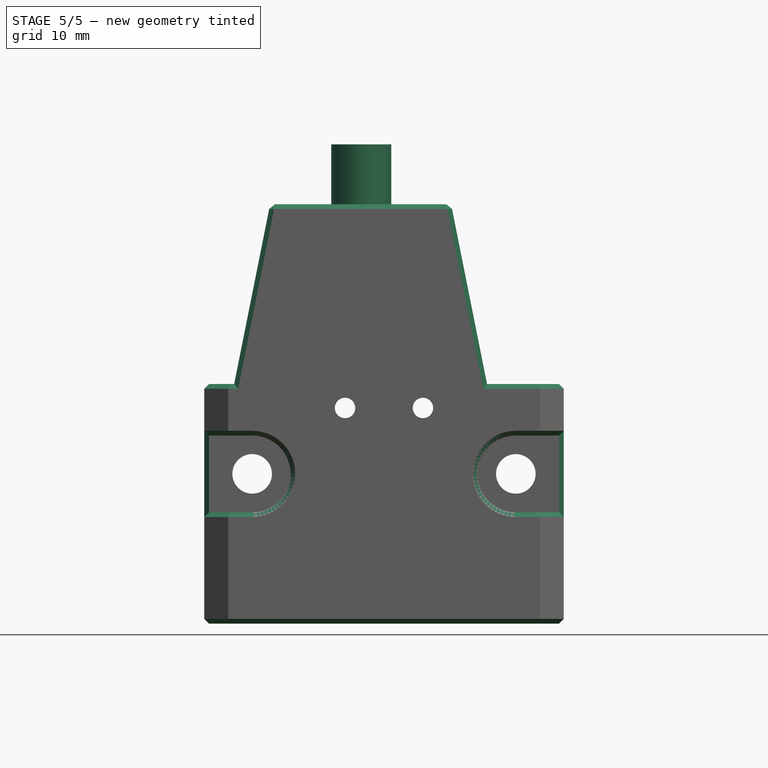
[diagram: stage 5 of 5 — front view after this stage's code; geometry added in this stage tinted green]
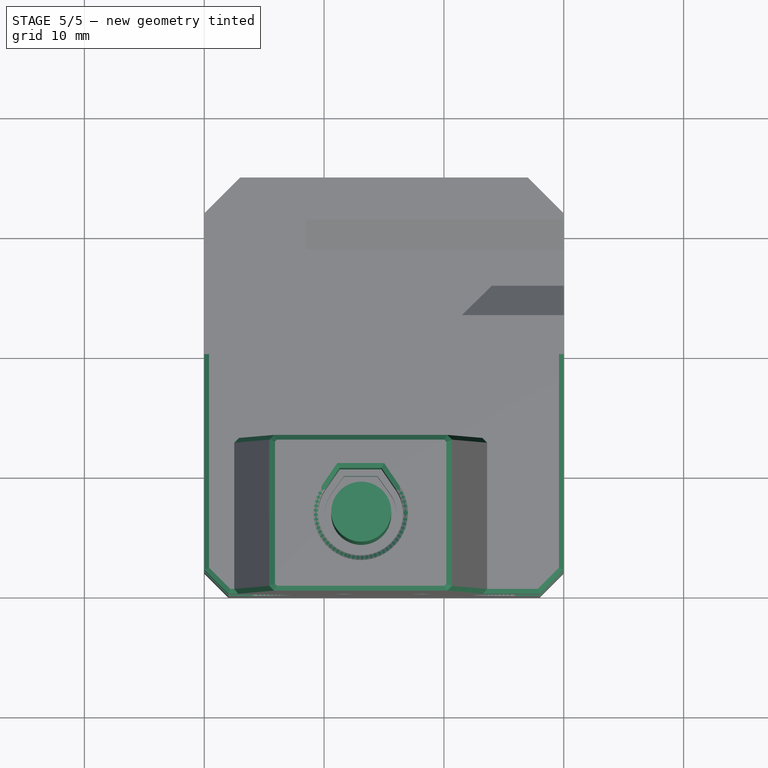
[diagram: stage 5 of 5 — top view after this stage's code; geometry added in this stage tinted green]
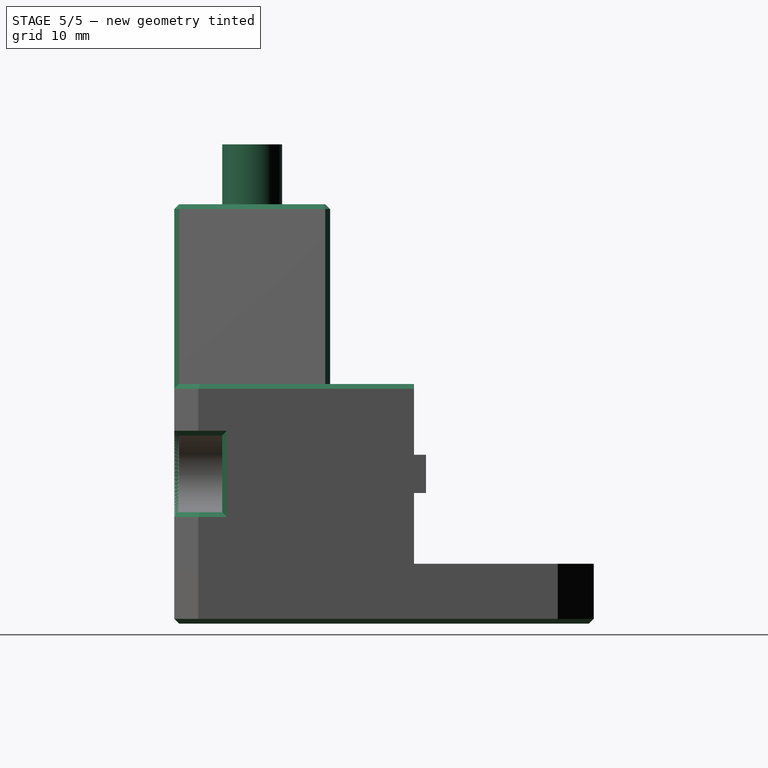
[diagram: stage 5 of 5 — right view after this stage's code; geometry added in this stage tinted green]
FEATURE [Part::Cylinder] Cylinder
  Angle = 360
  AttacherType = Attacher::AttachEngine3D
  Height = 16
  Placement = pos=(13.1,-13.5,19) rot=(0,0,1;0rad)
  Radius = 2.5
FEATURE [PartDesign::Chamfer] Chamfer004
  Angle = 45
  Base = -> Chamfer003 [Face12,Edge127,Edge152,Edge85,Edge87,Edge1,Edge20,Edge19,Edge86,Edge97,Edge91]
  BaseFeature = -> Chamfer003
  ChamferType = 0
  FlipDirection = false
  Size = 0.4
  Size2 = 1
  SupportTransform = false
FEATURE [Sketcher::SketchObject] Sketch014
  ExternalGeometry = -> [Chamfer004]
  FullyConstrained = true
  MapMode = 5
  Placement = pos=(0,0,30) rot=(0,0,1;0rad)
  Support = -> [Chamfer004]
  sketch-geometry (5):
    g0: ArcOfCircle CenterX=13.05 CenterY=-13.5 CenterZ=0 NormalX=0 NormalY=0 NormalZ=1 AngleXU=0 Radius=3.55 StartAngle=0.598471 EndAngle=2.54312
    g1: LineSegment StartX=10.117 StartY=-11.5 StartZ=0 EndX=11.3103 EndY=-9.75 EndZ=0
    g2: LineSegment StartX=15.983 StartY=-11.5 StartZ=0 EndX=14.7897 EndY=-9.75 EndZ=0
    g3: LineSegment StartX=11.3103 StartY=-9.75 StartZ=0 EndX=14.7897 EndY=-9.75 EndZ=0
    g4: LineSegment StartX=13.05 StartY=-9.75 StartZ=0 EndX=13.05 EndY=-9.95 EndZ=0
  constraints (15):
    c: Coincident(g0,g-3)
    c: PointOnObject(g0,g-3)
    c: Coincident(g1,g0)
    c: Tangent(g1,g0)
    c: Coincident(g3,g1)
    c: Coincident(g3,g2)
    c: Horizontal(g3)
    c: Horizontal(g0,g0)
    c: DistanceY(g0,g0) = 2
    c: Tangent(g2,g0) = -1.5708
    c: PointOnObject(g4,g3)
    c: PointOnObject(g4,g0)
    c: Vertical(g4)
    c: Vertical(g4,g0)
    c: DistanceY(g4,g4) = 0.2
FEATURE [PartDesign::Pocket] Pocket009
  BaseFeature = -> Chamfer004
  Length = 0
  Length2 = 100
  Profile = -> Sketch014
  Refine = true
  Type = 3
  UpToFace = -> Chamfer004 [Face84]
FEATURE [Sketcher::SketchObject] Sketch015
  ExternalGeometry = -> [Pocket009]
  FullyConstrained = true
  MapMode = 5
  Placement = pos=(0,0,21.5) rot=(0,0,1;0rad)
  Support = -> [Pocket009]
  sketch-geometry (5):
    g0: ArcOfCircle CenterX=13.05 CenterY=-13.5 CenterZ=0 NormalX=0 NormalY=0 NormalZ=1 AngleXU=0 Radius=3 StartAngle=0.622827 EndAngle=2.51877
    g1: LineSegment StartX=10.6133 StartY=-11.75 StartZ=0 EndX=11.6547 EndY=-10.3 EndZ=0
    g2: LineSegment StartX=15.4867 StartY=-11.75 StartZ=0 EndX=14.4453 EndY=-10.3 EndZ=0
    g3: LineSegment StartX=11.6547 StartY=-10.3 StartZ=0 EndX=14.4453 EndY=-10.3 EndZ=0
    g4: LineSegment StartX=13.05 StartY=-10.3 StartZ=0 EndX=13.05 EndY=-10.5 EndZ=0
  constraints (14):
    c: Coincident(g3,g1)
    c: Coincident(g3,g2)
    c: Horizontal(g3)
    c: PointOnObject(g4,g3)
    c: PointOnObject(g4,g0)
    c: Vertical(g4)
    c: Vertical(g4,g0)
    c: DistanceY(g4,g4) = 0.2
    c: Tangent(g0,g1) = 1.5708
    c: Tangent(g2,g0) = -1.5708
    c: Equal(g0,g-3)
    c: Coincident(g0,g-3)
    c: Horizontal(g0,g0)
    c: DistanceY(g0,g0) = 1.75
FEATURE [PartDesign::Pocket] Pocket010
  BaseFeature = -> Pocket009
  Length = 5
  Length2 = 100
  Profile = -> Sketch015
  Refine = true
  Type = 0
FEATURE [PartDesign::Chamfer] Chamfer005
  Angle = 45
  Base = -> Pocket010 [Face46,Edge140,Edge141,Edge71,Edge70,Edge68,Edge62,Edge60,Edge78,Edge64,Edge72,Edge201,Edge152,Edge153,Edge81,Edge80,Edge79,Edge145,Edge147]
  BaseFeature = -> Pocket010
  ChamferType = 0
  FlipDirection = false
  Size = 0.4
  Size2 = 1
  SupportTransform = false
FEATURE [PartDesign::Body] Body
  Group = -> [Sketch,Pad,Sketch001,Pad001,Sketch002,Pocket,Sketch003,Pocket001,Sketch004,Pocket002,Sketch005,Pocket003,Sketch006,Pocket004,Sketch007,Pocket005,Sketch008,Pocket006,Sketch009,Pad002,Sketch010,Pocket007,Sketch011,Pocket008,Chamfer,Chamfer001,Sketch012,Pad003,Chamfer002,Sketch013,Pad004,Chamfer003,Chamfer004,Sketch014,Pocket009,Sketch015,Pocket010,Chamfer005]
  Origin = -> Origin
  Tip = -> Chamfer005
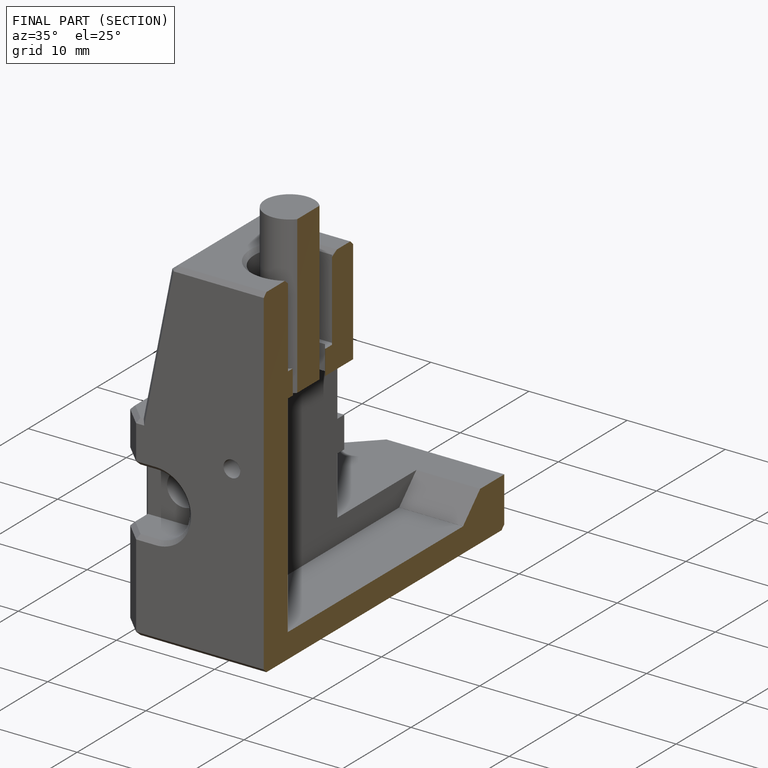
[diagram: finished part — half-section view (interior)]
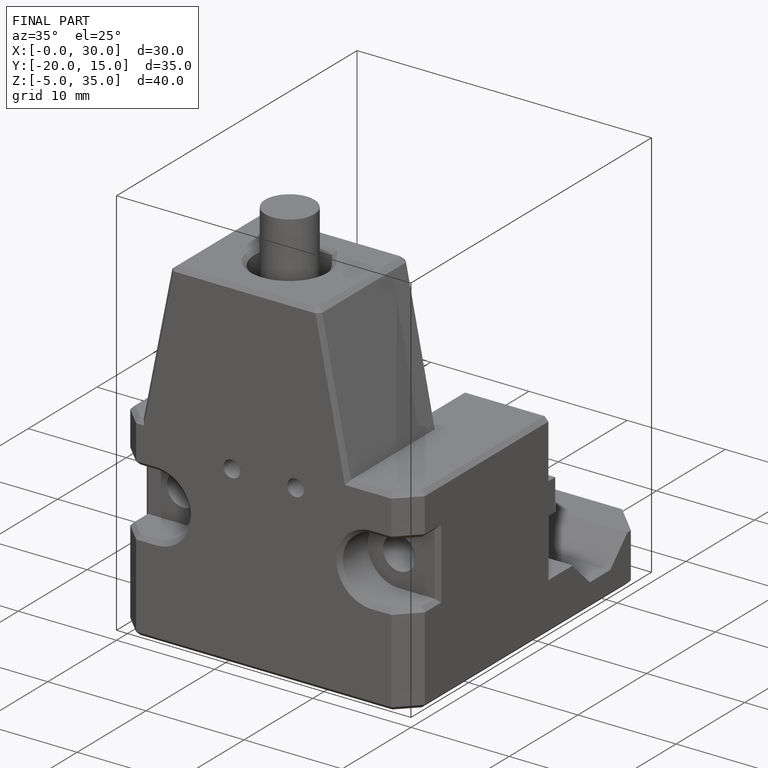
[diagram: finished part — iso view with bounding-box wireframe]
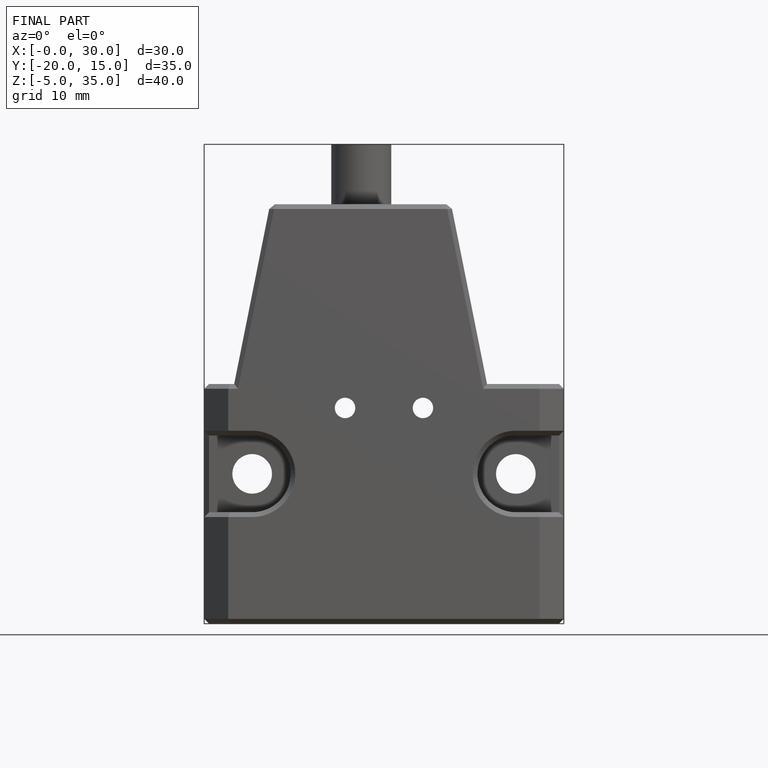
[diagram: finished part — front view with bounding-box wireframe]
